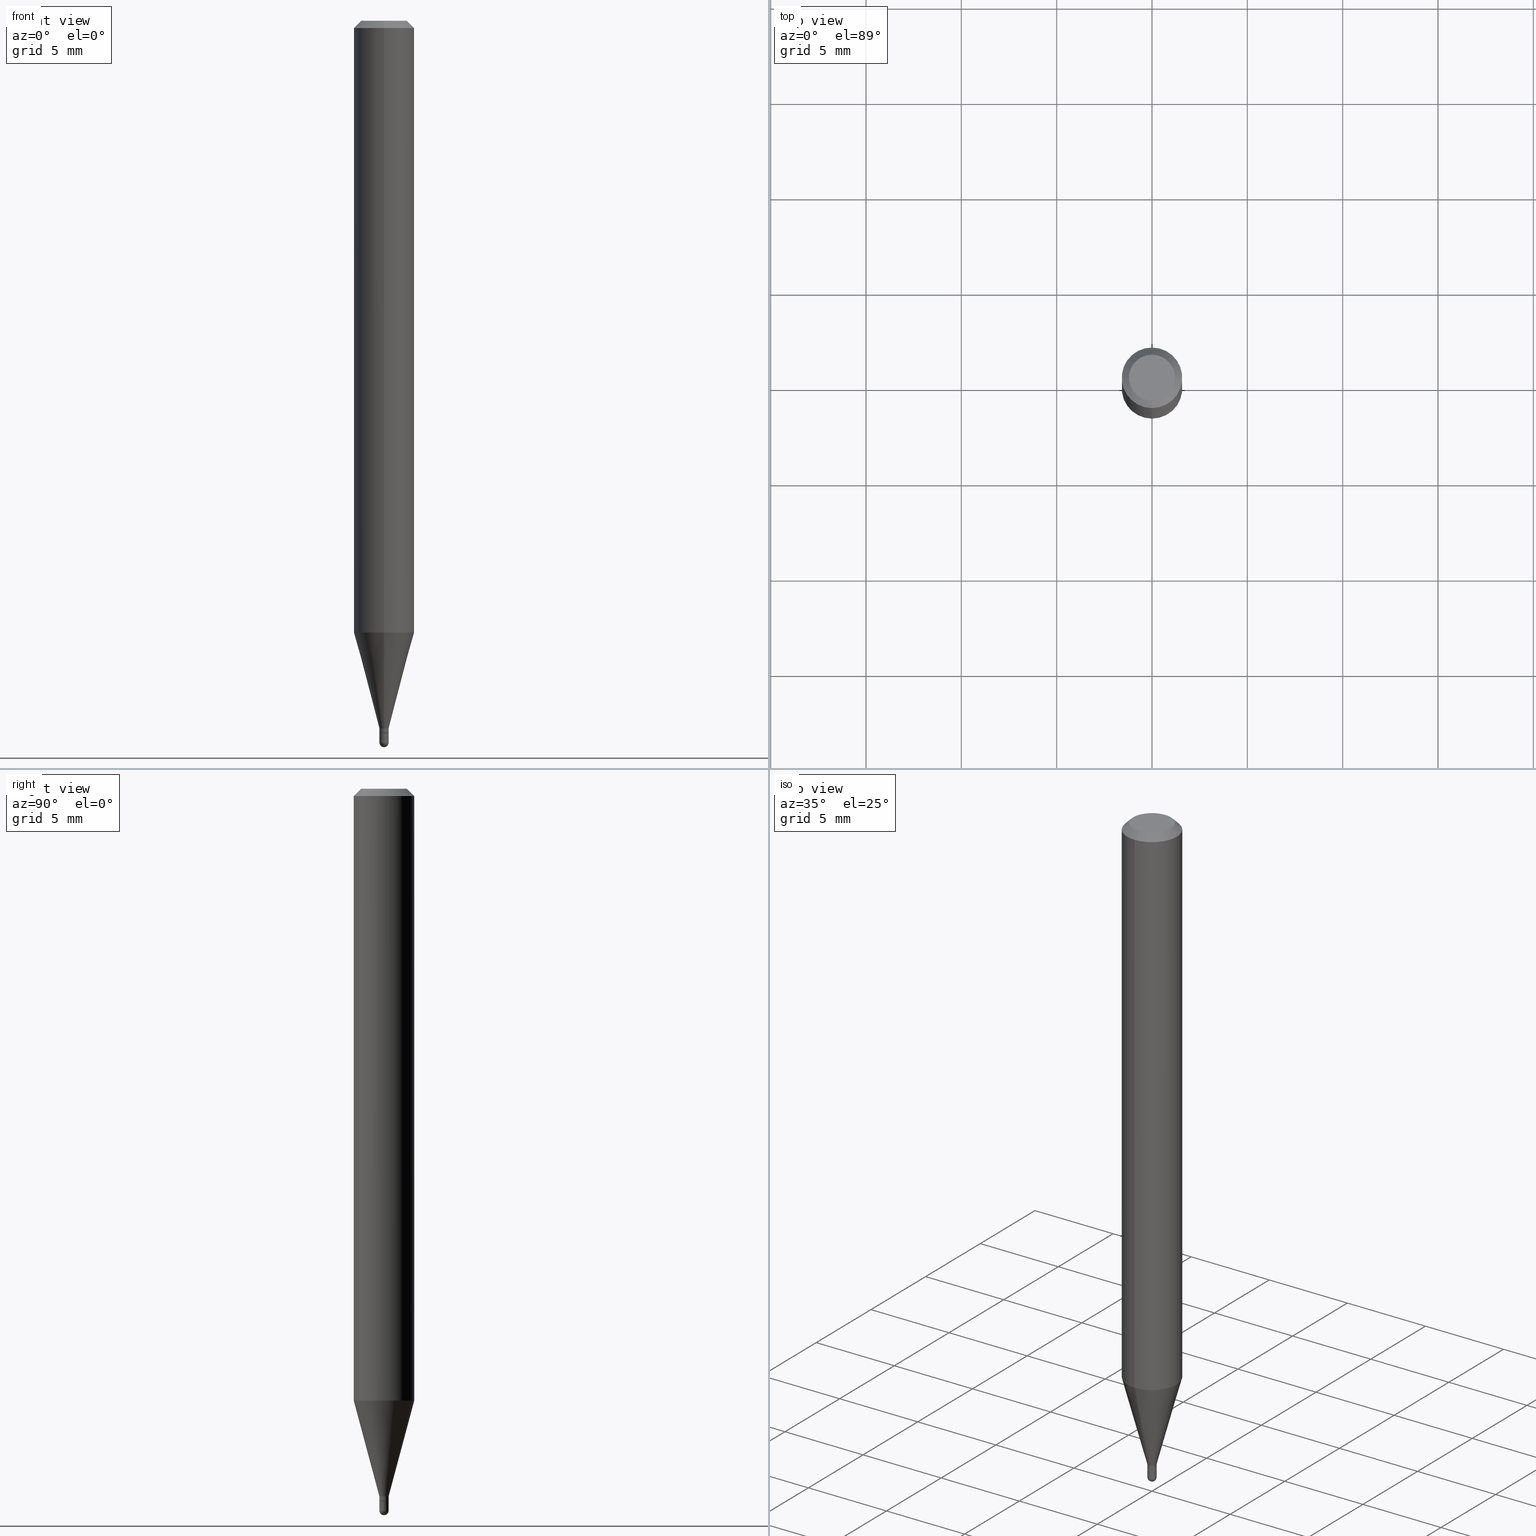
[diagram: canonical four-view strip — front | top / right | iso, engineering-drawing reading convention]
A machine part, canonical four-view strip (front | top / right | iso — engineering-drawing reading convention). The complete STEP part file that produces these views, byte-faithful:
ISO-10303-21;
HEADER;
FILE_DESCRIPTION (( 'STEP AP203' ),
    '1' );
FILE_NAME ('03080.STEP',
    '2024-03-08T18:07:23',
    ( '' ),
    ( '' ),
    'SwSTEP 2.0',
    'SolidWorks 2023',
    '' );
FILE_SCHEMA (( 'CONFIG_CONTROL_DESIGN' ));
ENDSEC;

DATA;
#1 = CARTESIAN_POINT ( 'NONE',  ( -6.633814543798517442E-17, -0.009500000000005297610, -1.461000000000000076 ) ) ;
#2 = AXIS2_PLACEMENT_3D ( 'NONE', #264, #398, #73 ) ;
#3 = VECTOR ( 'NONE', #189, 39.37007874015748143 ) ;
#4 = ORIENTED_EDGE ( 'NONE', *, *, #104, .F. ) ;
#5 = DIRECTION ( 'NONE',  ( 2.445482984812640302E-29, -3.491461034241563044E-15, -1.000000000000000000 ) ) ;
#6 = EDGE_LOOP ( 'NONE', ( #193, #278, #181, #230 ) ) ;
#7 = DIRECTION ( 'NONE',  ( -2.445482984812640302E-29, 3.491461034241563044E-15, 1.000000000000000000 ) ) ;
#8 = EDGE_LOOP ( 'NONE', ( #90, #362, #429, #195 ) ) ;
#9 = PERSON_AND_ORGANIZATION ( #420, #396 ) ;
#10 = AXIS2_PLACEMENT_3D ( 'NONE', #50, #340, #135 ) ;
#11 = VECTOR ( 'NONE', #265, 39.37007874015748143 ) ;
#12 = ADVANCED_FACE ( 'NONE', ( #68 ), #297, .T. ) ;
#13 = LINE ( 'NONE', #163, #473 ) ;
#14 = CARTESIAN_POINT ( 'NONE',  ( 6.633814543805549397E-17, 0.009499999999994863248, -1.471000000000000307 ) ) ;
#15 = APPROVAL_ROLE ( '' ) ;
#16 = ADVANCED_FACE ( 'NONE', ( #139 ), #418, .T. ) ;
#17 = DIRECTION ( 'NONE',  ( -6.982962677686265922E-15, -1.000000000000000000, 0.000000000000000000 ) ) ;
#18 = ORIENTED_EDGE ( 'NONE', *, *, #40, .T. ) ;
#19 = EDGE_LOOP ( 'NONE', ( #325, #86 ) ) ;
#20 = PRODUCT_DEFINITION ( 'UNKNOWN', '', #442, #43 ) ;
#21 = AXIS2_PLACEMENT_3D ( 'NONE', #413, #81, #44 ) ;
#22 = ORIENTED_EDGE ( 'NONE', *, *, #56, .T. ) ;
#23 = EDGE_CURVE ( 'NONE', #412, #390, #174, .T. ) ;
#24 = AXIS2_PLACEMENT_3D ( 'NONE', #31, #155, #34 ) ;
#25 = FACE_OUTER_BOUND ( 'NONE', #302, .T. ) ;
#26 = VERTEX_POINT ( 'NONE', #263 ) ;
#27 = ORIENTED_EDGE ( 'NONE', *, *, #358, .T. ) ;
#28 = DIRECTION ( 'NONE',  ( -6.982962677686265922E-15, -1.000000000000000000, 3.483106191921935554E-15 ) ) ;
#29 = ORIENTED_EDGE ( 'NONE', *, *, #150, .T. ) ;
#30 = CIRCLE ( 'NONE', #373, 0.009499999999999923436 ) ;
#31 = CARTESIAN_POINT ( 'NONE',  ( 3.644158847644226040E-29, -5.205216350004899290E-15, -1.490500000000000158 ) ) ;
#32 = CARTESIAN_POINT ( 'NONE',  ( 3.666984597315625009E-29, -5.238967129953503487E-15, -1.500000000000000222 ) ) ;
#33 = EDGE_LOOP ( 'NONE', ( #18, #149, #204, #272 ) ) ;
#34 = DIRECTION ( 'NONE',  ( 7.105427357601000281E-15, 1.000000000000000000, 0.000000000000000000 ) ) ;
#35 = CARTESIAN_POINT ( 'NONE',  ( 6.750155989724662942E-17, 0.009499999999995095701, -1.461000000000000076 ) ) ;
#36 = EDGE_LOOP ( 'NONE', ( #291, #359, #411, #202 ) ) ;
#37 = APPLICATION_CONTEXT ( 'configuration controlled 3d designs of mechanical parts and assemblies' ) ;
#38 = DIRECTION ( 'NONE',  ( -6.982962677686265922E-15, -1.000000000000000000, 4.370956789862821150E-15 ) ) ;
#39 = VERTEX_POINT ( 'NONE', #439 ) ;
#40 = EDGE_CURVE ( 'NONE', #456, #39, #215, .T. ) ;
#41 =( GEOMETRIC_REPRESENTATION_CONTEXT ( 3 ) GLOBAL_UNCERTAINTY_ASSIGNED_CONTEXT ( ( #196 ) ) GLOBAL_UNIT_ASSIGNED_CONTEXT ( ( #453, #511, #228 ) ) REPRESENTATION_CONTEXT ( 'NONE', 'WORKASPACE' ) );
#42 = ORIENTED_EDGE ( 'NONE', *, *, #190, .T. ) ;
#43 = DESIGN_CONTEXT ( 'detailed design', #37, 'design' ) ;
#44 = DIRECTION ( 'NONE',  ( -6.982962677686265922E-15, -1.000000000000000000, 0.000000000000000000 ) ) ;
#45 = ADVANCED_FACE ( 'NONE', ( #55 ), #129, .F. ) ;
#46 = EDGE_CURVE ( 'NONE', #274, #348, #153, .T. ) ;
#47 = COORDINATED_UNIVERSAL_TIME_OFFSET ( 5, 0, .BEHIND. ) ;
#48 = ORIENTED_EDGE ( 'NONE', *, *, #471, .F. ) ;
#49 = DATE_AND_TIME ( #91, #254 ) ;
#50 = CARTESIAN_POINT ( 'NONE',  ( 3.572850640811267668E-29, -5.101024571026923519E-15, -1.461000000000000076 ) ) ;
#51 = CALENDAR_DATE ( 2024, 8, 3 ) ;
#52 = CARTESIAN_POINT ( 'NONE',  ( 3.644971255618947272E-29, -5.204052935545710398E-15, -1.490500000000000380 ) ) ;
#53 = CONICAL_SURFACE ( 'NONE', #2, 0.008999999999999999320, 0.7853981633974739252 ) ;
#54 = APPROVAL_STATUS ( 'not_yet_approved' ) ;
#55 = FACE_OUTER_BOUND ( 'NONE', #267, .T. ) ;
#56 = EDGE_CURVE ( 'NONE', #274, #237, #166, .T. ) ;
#57 = DIRECTION ( 'NONE',  ( -2.445468806185136597E-29, 3.491481338843145583E-15, 1.000000000000000000 ) ) ;
#58 = DIRECTION ( 'NONE',  ( -6.982962677686265922E-15, -1.000000000000000000, 0.000000000000000000 ) ) ;
#59 = CIRCLE ( 'NONE', #304, 0.06250000000000000000 ) ;
#60 = ADVANCED_FACE ( 'NONE', ( #381 ), #416, .T. ) ;
#61 = CYLINDRICAL_SURFACE ( 'NONE', #338, 0.06250000000000000000 ) ;
#62 = CARTESIAN_POINT ( 'NONE',  ( 3.644158847644226040E-29, -5.205216350004899290E-15, -1.490500000000000158 ) ) ;
#63 = ADVANCED_FACE ( 'NONE', ( #372 ), #424, .T. ) ;
#64 = AXIS2_PLACEMENT_3D ( 'NONE', #106, #324, #273 ) ;
#65 = CIRCLE ( 'NONE', #504, 0.009500000000000001499 ) ;
#66 = DIRECTION ( 'NONE',  ( -2.445468806185136597E-29, 3.491481338843145583E-15, 1.000000000000000000 ) ) ;
#67 = CARTESIAN_POINT ( 'NONE',  ( 6.750155989724470657E-17, 0.009499999999994757430, -1.470500000000000362 ) ) ;
#68 = FACE_OUTER_BOUND ( 'NONE', #451, .T. ) ;
#69 = PRODUCT_RELATED_PRODUCT_CATEGORY ( 'detail', '', ( #122 ) ) ;
#70 = EDGE_CURVE ( 'NONE', #173, #156, #419, .T. ) ;
#71 = DIRECTION ( 'NONE',  ( -2.445482984812640021E-29, 3.491461034241563044E-15, 1.000000000000000000 ) ) ;
#72 = LINE ( 'NONE', #35, #11 ) ;
#73 = DIRECTION ( 'NONE',  ( -6.982962677686265133E-15, -1.000000000000000000, 0.000000000000000000 ) ) ;
#74 = CLOSED_SHELL ( 'NONE', ( #446, #259, #84, #99, #199, #16, #336, #503, #403, #207, #286, #363 ) ) ;
#75 = CARTESIAN_POINT ( 'NONE',  ( 3.597305470659394598E-29, -5.135939181369340002E-15, -1.471000000000000307 ) ) ;
#76 = CIRCLE ( 'NONE', #483, 0.04749999999999999362 ) ;
#77 = CIRCLE ( 'NONE', #198, 0.06250000000000000000 ) ;
#78 = DIRECTION ( 'NONE',  ( -6.982962677686265133E-15, -1.000000000000000000, 0.000000000000000000 ) ) ;
#79 = CARTESIAN_POINT ( 'NONE',  ( 4.364351673553919652E-16, 0.06249999999999995143, -0.01499999999999997863 ) ) ;
#80 = ORIENTED_EDGE ( 'NONE', *, *, #294, .F. ) ;
#81 = DIRECTION ( 'NONE',  ( -2.445482984812640302E-29, 3.491461034241563044E-15, 1.000000000000000000 ) ) ;
#82 = LINE ( 'NONE', #478, #440 ) ;
#83 = CYLINDRICAL_SURFACE ( 'NONE', #320, 0.009500000000000060479 ) ;
#84 = ADVANCED_FACE ( 'NONE', ( #101 ), #175, .T. ) ;
#85 = DIRECTION ( 'NONE',  ( -2.445482984812640302E-29, 3.491461034241563044E-15, 1.000000000000000000 ) ) ;
#86 = ORIENTED_EDGE ( 'NONE', *, *, #170, .F. ) ;
#87 = ORIENTED_EDGE ( 'NONE', *, *, #46, .F. ) ;
#88 = CIRCLE ( 'NONE', #495, 0.009500000000000195788 ) ;
#89 = CARTESIAN_POINT ( 'NONE',  ( 0.000000000000000000, 0.000000000000000000, 0.000000000000000000 ) ) ;
#90 = ORIENTED_EDGE ( 'NONE', *, *, #275, .F. ) ;
#91 = CALENDAR_DATE ( 2024, 8, 3 ) ;
#92 = EDGE_CURVE ( 'NONE', #466, #235, #13, .T. ) ;
#93 = CALENDAR_DATE ( 2024, 8, 3 ) ;
#94 = AXIS2_PLACEMENT_3D ( 'NONE', #75, #282, #461 ) ;
#95 = CARTESIAN_POINT ( 'NONE',  ( -5.856630421576116268E-45, 8.361618966837089108E-31, 2.394876782193117197E-16 ) ) ;
#96 = APPROVAL_STATUS ( 'not_yet_approved' ) ;
#97 = CC_DESIGN_DATE_AND_TIME_ASSIGNMENT ( #49, #382, ( #126 ) ) ;
#98 = APPROVAL ( #54, 'UNSPECIFIED' ) ;
#99 = ADVANCED_FACE ( 'NONE', ( #494 ), #281, .T. ) ;
#100 = ADVANCED_BREP_SHAPE_REPRESENTATION ( '03080', ( #110, #283, #375 ), #41 ) ;
#101 = FACE_OUTER_BOUND ( 'NONE', #121, .T. ) ;
#102 = CARTESIAN_POINT ( 'NONE',  ( 0.000000000000000000, 0.000000000000000000, 0.000000000000000000 ) ) ;
#103 = AXIS2_PLACEMENT_3D ( 'NONE', #62, #498, #58 ) ;
#104 = EDGE_CURVE ( 'NONE', #444, #274, #184, .T. ) ;
#105 = ORIENTED_EDGE ( 'NONE', *, *, #227, .T. ) ;
#106 = CARTESIAN_POINT ( 'NONE',  ( 3.644158847644226040E-29, -5.205216350004899290E-15, -1.490500000000000158 ) ) ;
#107 = DIRECTION ( 'NONE',  ( -2.445482984812640302E-29, 3.491461034241563044E-15, 1.000000000000000000 ) ) ;
#108 = CARTESIAN_POINT ( 'NONE',  ( -4.287811248607203282E-16, -0.06250000000000005551, -0.01499999999999954321 ) ) ;
#109 = CARTESIAN_POINT ( 'NONE',  ( 3.840629472727447874E-16, 0.04749999999999999362, 7.364327909283752044E-17 ) ) ;
#110 = MANIFOLD_SOLID_BREP ( 'Body-Move/Copy2[1]', #295 ) ;
#111 = CARTESIAN_POINT ( 'NONE',  ( 3.597305470659394598E-29, -5.135939181369340002E-15, -1.471000000000000307 ) ) ;
#112 = ORIENTED_EDGE ( 'NONE', *, *, #92, .T. ) ;
#113 = VECTOR ( 'NONE', #133, 39.37007874015748143 ) ;
#114 = AXIS2_PLACEMENT_3D ( 'NONE', #171, #221, #299 ) ;
#115 = DIRECTION ( 'NONE',  ( 6.982962677686265922E-15, 1.000000000000000000, -3.483106191921935554E-15 ) ) ;
#116 = DIRECTION ( 'NONE',  ( -2.445482984812640302E-29, 3.491461034241563044E-15, 1.000000000000000000 ) ) ;
#117 = EDGE_LOOP ( 'NONE', ( #262, #486, #243, #393 ) ) ;
#118 = DIRECTION ( 'NONE',  ( -6.982962677686265133E-15, -1.000000000000000000, 0.000000000000000000 ) ) ;
#119 = EDGE_CURVE ( 'NONE', #479, #177, #76, .T. ) ;
#120 = CARTESIAN_POINT ( 'NONE',  ( -6.633814543798517442E-17, -0.009500000000005297610, -1.461000000000000076 ) ) ;
#121 = EDGE_LOOP ( 'NONE', ( #490, #493, #185, #48 ) ) ;
#122 = PRODUCT ( '03080', '03080', '', ( #206 ) ) ;
#123 = ORIENTED_EDGE ( 'NONE', *, *, #358, .F. ) ;
#124 = PERSON_AND_ORGANIZATION ( #420, #396 ) ;
#125 = AXIS2_PLACEMENT_3D ( 'NONE', #208, #374, #130 ) ;
#126 = SECURITY_CLASSIFICATION ( '', '', #244 ) ;
#127 = DIRECTION ( 'NONE',  ( 0.000000000000000000, 0.000000000000000000, 1.000000000000000000 ) ) ;
#128 = VERTEX_POINT ( 'NONE', #505 ) ;
#129 = PLANE ( 'NONE',  #394 ) ;
#130 = DIRECTION ( 'NONE',  ( 6.982962677686265922E-15, 1.000000000000000000, -3.483106191921935554E-15 ) ) ;
#131 = PERSON_AND_ORGANIZATION_ROLE ( 'design_owner' ) ;
#132 = VECTOR ( 'NONE', #232, 39.37007874015748143 ) ;
#133 = DIRECTION ( 'NONE',  ( -2.445468806185136877E-29, 3.491481338843145188E-15, 1.000000000000000000 ) ) ;
#134 = DATE_AND_TIME ( #497, #248 ) ;
#135 = DIRECTION ( 'NONE',  ( -6.982962677686265922E-15, -1.000000000000000000, 0.000000000000000000 ) ) ;
#136 = CARTESIAN_POINT ( 'NONE',  ( 3.668224477218901983E-31, -5.237191551362261588E-17, -0.01499999999999976179 ) ) ;
#137 = VECTOR ( 'NONE', #107, 39.37007874015748143 ) ;
#138 = LOCAL_TIME ( 13, 7, 23.00000000000000000, #47 ) ;
#139 = FACE_OUTER_BOUND ( 'NONE', #400, .T. ) ;
#140 = CARTESIAN_POINT ( 'NONE',  ( 3.316907271900976096E-16, 0.04749999999999999362, -4.610056001681835172E-17 ) ) ;
#141 = DIRECTION ( 'NONE',  ( -2.445482984812640302E-29, 3.491461034241563044E-15, 1.000000000000000000 ) ) ;
#142 = DIRECTION ( 'NONE',  ( -2.445482984812640302E-29, 3.491461034241563044E-15, 1.000000000000000000 ) ) ;
#143 = AXIS2_PLACEMENT_3D ( 'NONE', #450, #5, #115 ) ;
#144 = DIRECTION ( 'NONE',  ( -2.445482984812640302E-29, 3.491461034241563044E-15, 1.000000000000000000 ) ) ;
#145 = CARTESIAN_POINT ( 'NONE',  ( 0.000000000000000000, 0.000000000000000000, 0.000000000000000000 ) ) ;
#146 = FACE_OUTER_BOUND ( 'NONE', #293, .T. ) ;
#147 = ORIENTED_EDGE ( 'NONE', *, *, #414, .F. ) ;
#148 = CARTESIAN_POINT ( 'NONE',  ( 3.597305470659394598E-29, -5.135939181369340002E-15, -1.471000000000000307 ) ) ;
#149 = ORIENTED_EDGE ( 'NONE', *, *, #294, .T. ) ;
#150 = EDGE_CURVE ( 'NONE', #237, #319, #247, .T. ) ;
#151 = DIRECTION ( 'NONE',  ( -6.982962677686266711E-15, -1.000000000000000000, 3.491461034241562650E-15 ) ) ;
#152 = EDGE_LOOP ( 'NONE', ( #431, #508, #407, #105, #172 ) ) ;
#153 = CIRCLE ( 'NONE', #459, 0.009500000000000001499 ) ;
#154 = CIRCLE ( 'NONE', #491, 0.008999999999999999320 ) ;
#155 = DIRECTION ( 'NONE',  ( 1.000000000000000000, -7.105427357601001070E-15, 4.926315508542082329E-29 ) ) ;
#156 = VERTEX_POINT ( 'NONE', #1 ) ;
#157 = CARTESIAN_POINT ( 'NONE',  ( 3.089137303147875048E-29, -4.410418142487795065E-15, -1.263201307198851042 ) ) ;
#158 = ORIENTED_EDGE ( 'NONE', *, *, #335, .T. ) ;
#159 = ORIENTED_EDGE ( 'NONE', *, *, #70, .T. ) ;
#160 = CIRCLE ( 'NONE', #229, 0.009500000000000001499 ) ;
#161 = PERSON_AND_ORGANIZATION_ROLE ( 'creator' ) ;
#162 = APPROVAL ( #96, 'UNSPECIFIED' ) ;
#163 = CARTESIAN_POINT ( 'NONE',  ( 4.440892098500625669E-16, 0.06250000000000000000, -2.182163146400976903E-16 ) ) ;
#164 = DATE_AND_TIME ( #51, #404 ) ;
#165 = CC_DESIGN_PERSON_AND_ORGANIZATION_ASSIGNMENT ( #356, #481, ( #126 ) ) ;
#166 = LINE ( 'NONE', #496, #113 ) ;
#167 = EDGE_CURVE ( 'NONE', #449, #235, #474, .T. ) ;
#168 = CC_DESIGN_APPROVAL ( #98, ( #126 ) ) ;
#169 = DIRECTION ( 'NONE',  ( -2.445468806185136597E-29, 3.491481338843145583E-15, 1.000000000000000000 ) ) ;
#170 = EDGE_CURVE ( 'NONE', #39, #456, #154, .T. ) ;
#171 = CARTESIAN_POINT ( 'NONE',  ( 0.000000000000000000, 0.000000000000000000, 0.000000000000000000 ) ) ;
#172 = ORIENTED_EDGE ( 'NONE', *, *, #150, .F. ) ;
#173 = VERTEX_POINT ( 'NONE', #433 ) ;
#174 = CIRCLE ( 'NONE', #284, 0.009499999999999923436 ) ;
#175 = CONICAL_SURFACE ( 'NONE', #125, 0.06250000000000000000, 0.7853981633974483900 ) ;
#176 = CC_DESIGN_APPROVAL ( #388, ( #442 ) ) ;
#177 = VERTEX_POINT ( 'NONE', #109 ) ;
#178 = DIRECTION ( 'NONE',  ( -6.982962677686265922E-15, -1.000000000000000000, 0.000000000000000000 ) ) ;
#179 = EDGE_LOOP ( 'NONE', ( #415, #22, #123, #367, #219 ) ) ;
#180 = CARTESIAN_POINT ( 'NONE',  ( 6.394884621844497902E-17, 0.008999999999994862804, -1.471000000000000307 ) ) ;
#181 = ORIENTED_EDGE ( 'NONE', *, *, #298, .T. ) ;
#182 = DIRECTION ( 'NONE',  ( 1.000000000000000000, -6.982962677686281699E-15, 0.000000000000000000 ) ) ;
#183 = APPLICATION_PROTOCOL_DEFINITION ( 'international standard', 'config_control_design', 1994, #234 ) ;
#184 = CIRCLE ( 'NONE', #216, 0.009500000000000001499 ) ;
#185 = ORIENTED_EDGE ( 'NONE', *, *, #167, .T. ) ;
#186 = CIRCLE ( 'NONE', #387, 0.06250000000000000000 ) ;
#187 = DIRECTION ( 'NONE',  ( -2.445482984812640302E-29, 3.491461034241563044E-15, 1.000000000000000000 ) ) ;
#188 = COORDINATED_UNIVERSAL_TIME_OFFSET ( 5, 0, .BEHIND. ) ;
#189 = DIRECTION ( 'NONE',  ( -1.807323732225330928E-15, -0.2588190451025182970, 0.9659258262890689783 ) ) ;
#190 = EDGE_CURVE ( 'NONE', #390, #156, #225, .T. ) ;
#191 = EDGE_LOOP ( 'NONE', ( #310, #112, #489, #218 ) ) ;
#192 = LENGTH_MEASURE_WITH_UNIT ( LENGTH_MEASURE( 0.02539999999999999897 ), #357 );
#193 = ORIENTED_EDGE ( 'NONE', *, *, #92, .F. ) ;
#194 = EDGE_CURVE ( 'NONE', #364, #444, #266, .T. ) ;
#195 = ORIENTED_EDGE ( 'NONE', *, *, #331, .T. ) ;
#196 = UNCERTAINTY_MEASURE_WITH_UNIT (LENGTH_MEASURE( 1.000000000000000082E-05 ), #453, 'distance_accuracy_value', 'NONE');
#197 = CONICAL_SURFACE ( 'NONE', #276, 0.008999999999999999320, 0.7853981633974739252 ) ;
#198 = AXIS2_PLACEMENT_3D ( 'NONE', #350, #142, #476 ) ;
#199 = ADVANCED_FACE ( 'NONE', ( #482 ), #395, .T. ) ;
#200 = LINE ( 'NONE', #326, #285 ) ;
#201 = LINE ( 'NONE', #79, #499 ) ;
#202 = ORIENTED_EDGE ( 'NONE', *, *, #190, .F. ) ;
#203 = DATE_AND_TIME ( #384, #138 ) ;
#204 = ORIENTED_EDGE ( 'NONE', *, *, #257, .F. ) ;
#205 = DIRECTION ( 'NONE',  ( -6.982962677686265922E-15, -1.000000000000000000, 3.491461034241563044E-15 ) ) ;
#206 = MECHANICAL_CONTEXT ( 'NONE', #234, 'mechanical' ) ;
#207 = ADVANCED_FACE ( 'NONE', ( #349 ), #509, .F. ) ;
#208 = CARTESIAN_POINT ( 'NONE',  ( 3.668224477218901983E-31, -5.237191551362261588E-17, -0.01499999999999976179 ) ) ;
#209 = APPROVAL_PERSON_ORGANIZATION ( #250, #98, #252 ) ;
#210 = APPROVAL_DATE_TIME ( #134, #98 ) ;
#211 = APPLICATION_PROTOCOL_DEFINITION ( 'international standard', 'config_control_design', 1994, #37 ) ;
#212 = DIRECTION ( 'NONE',  ( -1.000000000000000000, 6.982962677686265922E-15, -4.876176775795935793E-29 ) ) ;
#213 = CARTESIAN_POINT ( 'NONE',  ( 0.009499999999999999764, -5.202307194876288105E-15, -1.471000000000000307 ) ) ;
#214 = CARTESIAN_POINT ( 'NONE',  ( 0.000000000000000000, 0.000000000000000000, 0.000000000000000000 ) ) ;
#215 = CIRCLE ( 'NONE', #94, 0.008999999999999999320 ) ;
#216 = AXIS2_PLACEMENT_3D ( 'NONE', #52, #376, #423 ) ;
#217 = DIRECTION ( 'NONE',  ( -2.445482984812640302E-29, 3.491461034241563044E-15, 1.000000000000000000 ) ) ;
#218 = ORIENTED_EDGE ( 'NONE', *, *, #298, .F. ) ;
#219 = ORIENTED_EDGE ( 'NONE', *, *, #251, .T. ) ;
#220 = DIRECTION ( 'NONE',  ( -2.445482984812640302E-29, 3.491461034241563044E-15, 1.000000000000000000 ) ) ;
#221 = DIRECTION ( 'NONE',  ( -2.445468806185136597E-29, 3.491481338843145583E-15, 1.000000000000000000 ) ) ;
#222 = AXIS2_PLACEMENT_3D ( 'NONE', #268, #475, #182 ) ;
#223 = LINE ( 'NONE', #180, #332 ) ;
#224 = DIRECTION ( 'NONE',  ( 2.445482984812640021E-29, -3.491461034241563044E-15, -1.000000000000000000 ) ) ;
#225 = LINE ( 'NONE', #355, #239 ) ;
#226 = PERSON_AND_ORGANIZATION ( #420, #396 ) ;
#227 = EDGE_CURVE ( 'NONE', #128, #319, #82, .T. ) ;
#228 =( NAMED_UNIT ( * ) SI_UNIT ( $, .STERADIAN. ) SOLID_ANGLE_UNIT ( ) );
#229 = AXIS2_PLACEMENT_3D ( 'NONE', #269, #448, #313 ) ;
#230 = ORIENTED_EDGE ( 'NONE', *, *, #331, .F. ) ;
#231 = VECTOR ( 'NONE', #409, 39.37007874015748143 ) ;
#232 = DIRECTION ( 'NONE',  ( -4.851104656540964275E-15, -0.7071067811865500152, -0.7071067811865450192 ) ) ;
#233 = APPROVAL_DATE_TIME ( #164, #388 ) ;
#234 = APPLICATION_CONTEXT ( 'configuration controlled 3d designs of mechanical parts and assemblies' ) ;
#235 = VERTEX_POINT ( 'NONE', #312 ) ;
#236 = FACE_OUTER_BOUND ( 'NONE', #179, .T. ) ;
#237 = VERTEX_POINT ( 'NONE', #303 ) ;
#238 = ORIENTED_EDGE ( 'NONE', *, *, #464, .T. ) ;
#239 = VECTOR ( 'NONE', #408, 39.37007874015748143 ) ;
#240 = AXIS2_PLACEMENT_3D ( 'NONE', #214, #169, #287 ) ;
#241 = APPROVAL_PERSON_ORGANIZATION ( #249, #388, #15 ) ;
#242 = ORIENTED_EDGE ( 'NONE', *, *, #452, .T. ) ;
#243 = ORIENTED_EDGE ( 'NONE', *, *, #251, .F. ) ;
#244 = SECURITY_CLASSIFICATION_LEVEL ( 'unclassified' ) ;
#245 = APPROVAL_ROLE ( '' ) ;
#246 = CARTESIAN_POINT ( 'NONE',  ( 3.644971255618947272E-29, -5.204052935545710398E-15, -1.490500000000000380 ) ) ;
#247 = CIRCLE ( 'NONE', #222, 0.009499999999999999764 ) ;
#248 = LOCAL_TIME ( 13, 7, 23.00000000000000000, #389 ) ;
#249 = PERSON_AND_ORGANIZATION ( #420, #396 ) ;
#250 = PERSON_AND_ORGANIZATION ( #420, #396 ) ;
#251 = EDGE_CURVE ( 'NONE', #128, #444, #65, .T. ) ;
#252 = APPROVAL_ROLE ( '' ) ;
#253 = AXIS2_PLACEMENT_3D ( 'NONE', #397, #144, #502 ) ;
#254 = LOCAL_TIME ( 13, 7, 23.00000000000000000, #277 ) ;
#255 = CC_DESIGN_PERSON_AND_ORGANIZATION_ASSIGNMENT ( #226, #308, ( #442 ) ) ;
#256 = CARTESIAN_POINT ( 'NONE',  ( -6.633814543798259830E-17, -0.009500000000005136280, -1.490500000000000380 ) ) ;
#257 = EDGE_CURVE ( 'NONE', #390, #412, #30, .T. ) ;
#258 = DIRECTION ( 'NONE',  ( -2.445482984812640302E-29, 3.491461034241563044E-15, 1.000000000000000000 ) ) ;
#259 = ADVANCED_FACE ( 'NONE', ( #437 ), #53, .T. ) ;
#260 = CARTESIAN_POINT ( 'NONE',  ( 3.644971255618947272E-29, -5.204052935545710398E-15, -1.490500000000000380 ) ) ;
#261 = DIRECTION ( 'NONE',  ( -2.445482984812640302E-29, 3.491461034241563044E-15, 1.000000000000000000 ) ) ;
#262 = ORIENTED_EDGE ( 'NONE', *, *, #306, .F. ) ;
#263 = CARTESIAN_POINT ( 'NONE',  ( -4.364351673553607559E-16, -0.06250000000000441314, -1.263201307198850820 ) ) ;
#264 = CARTESIAN_POINT ( 'NONE',  ( 3.597305470659394598E-29, -5.135939181369340002E-15, -1.471000000000000307 ) ) ;
#265 = DIRECTION ( 'NONE',  ( 1.839019923739601104E-15, 0.2588190451025250693, 0.9659258262890670910 ) ) ;
#266 = CIRCLE ( 'NONE', #24, 0.009499999999999862721 ) ;
#267 = EDGE_LOOP ( 'NONE', ( #27, #29 ) ) ;
#268 = CARTESIAN_POINT ( 'NONE',  ( 3.597284613898336423E-29, -5.135969049438267814E-15, -1.471000000000000307 ) ) ;
#269 = CARTESIAN_POINT ( 'NONE',  ( 3.644971255618947272E-29, -5.204052935545710398E-15, -1.490500000000000380 ) ) ;
#270 = EDGE_LOOP ( 'NONE', ( #158, #512, #147, #354 ) ) ;
#271 = CARTESIAN_POINT ( 'NONE',  ( 4.440892098500932831E-16, 0.06249999999999557992, -1.263201307198851264 ) ) ;
#272 = ORIENTED_EDGE ( 'NONE', *, *, #464, .F. ) ;
#273 = DIRECTION ( 'NONE',  ( -6.982962677686265922E-15, -1.000000000000000000, 0.000000000000000000 ) ) ;
#274 = VERTEX_POINT ( 'NONE', #401 ) ;
#275 = EDGE_CURVE ( 'NONE', #479, #449, #315, .T. ) ;
#276 = AXIS2_PLACEMENT_3D ( 'NONE', #487, #187, #118 ) ;
#277 = COORDINATED_UNIVERSAL_TIME_OFFSET ( 5, 0, .BEHIND. ) ;
#278 = ORIENTED_EDGE ( 'NONE', *, *, #370, .T. ) ;
#279 = ORIENTED_EDGE ( 'NONE', *, *, #119, .T. ) ;
#280 = COORDINATED_UNIVERSAL_TIME_OFFSET ( 5, 0, .BEHIND. ) ;
#281 = CYLINDRICAL_SURFACE ( 'NONE', #426, 0.06250000000000000000 ) ;
#282 = DIRECTION ( 'NONE',  ( -2.445482984812640302E-29, 3.491461034241563044E-15, 1.000000000000000000 ) ) ;
#283 = MANIFOLD_SOLID_BREP ( 'Body-Move/Copy2[2]', #74 ) ;
#284 = AXIS2_PLACEMENT_3D ( 'NONE', #368, #7, #311 ) ;
#285 = VECTOR ( 'NONE', #425, 39.37007874015748143 ) ;
#286 = ADVANCED_FACE ( 'NONE', ( #25 ), #197, .T. ) ;
#287 = DIRECTION ( 'NONE',  ( 1.000000000000000000, -6.982962677686265922E-15, 4.876176775795935793E-29 ) ) ;
#288 = SHAPE_DEFINITION_REPRESENTATION ( #378, #100 ) ;
#289 = DIRECTION ( 'NONE',  ( 1.000000000000000000, 0.000000000000000000, 0.000000000000000000 ) ) ;
#290 = DIRECTION ( 'NONE',  ( 1.000000000000000000, -6.982962677686280121E-15, 0.000000000000000000 ) ) ;
#291 = ORIENTED_EDGE ( 'NONE', *, *, #257, .T. ) ;
#292 = CC_DESIGN_PERSON_AND_ORGANIZATION_ASSIGNMENT ( #458, #131, ( #122 ) ) ;
#293 = EDGE_LOOP ( 'NONE', ( #314, #371, #42, #351 ) ) ;
#294 = EDGE_CURVE ( 'NONE', #39, #412, #223, .T. ) ;
#295 = CLOSED_SHELL ( 'NONE', ( #383, #63, #45, #12, #60 ) ) ;
#296 = LOCAL_TIME ( 13, 7, 23.00000000000000000, #280 ) ;
#297 = SPHERICAL_SURFACE ( 'NONE', #64, 0.009499999999999862721 ) ;
#298 = EDGE_CURVE ( 'NONE', #26, #449, #200, .T. ) ;
#299 = DIRECTION ( 'NONE',  ( 1.000000000000000000, -6.982962677686265922E-15, 4.876176775795935793E-29 ) ) ;
#300 = LINE ( 'NONE', #468, #137 ) ;
#301 = CARTESIAN_POINT ( 'NONE',  ( -5.856630421576116268E-45, 8.361618966837089108E-31, 2.394876782193117197E-16 ) ) ;
#302 = EDGE_LOOP ( 'NONE', ( #80, #323, #238, #342 ) ) ;
#303 = CARTESIAN_POINT ( 'NONE',  ( -0.009499999999999999764, -5.102509432594779134E-15, -1.471000000000000307 ) ) ;
#304 = AXIS2_PLACEMENT_3D ( 'NONE', #136, #220, #465 ) ;
#305 = CARTESIAN_POINT ( 'NONE',  ( -6.633814543798326390E-17, -0.009500000000005089443, -1.470500000000000362 ) ) ;
#306 = EDGE_CURVE ( 'NONE', #364, #348, #432, .T. ) ;
#307 = DIRECTION ( 'NONE',  ( -6.982962677686265922E-15, -1.000000000000000000, 3.491461034241563044E-15 ) ) ;
#308 = PERSON_AND_ORGANIZATION_ROLE ( 'design_supplier' ) ;
#309 = CARTESIAN_POINT ( 'NONE',  ( -6.284666409914041700E-17, -0.009000000000005135836, -1.471000000000000307 ) ) ;
#310 = ORIENTED_EDGE ( 'NONE', *, *, #414, .T. ) ;
#311 = DIRECTION ( 'NONE',  ( -6.982962677686266711E-15, -1.000000000000000000, 0.000000000000000000 ) ) ;
#312 = CARTESIAN_POINT ( 'NONE',  ( 4.440892098500935790E-16, 0.06249999999999993755, -0.01499999999999997863 ) ) ;
#313 = DIRECTION ( 'NONE',  ( 1.000000000000000000, -6.982962677686280121E-15, 0.000000000000000000 ) ) ;
#314 = ORIENTED_EDGE ( 'NONE', *, *, #344, .F. ) ;
#315 = LINE ( 'NONE', #108, #132 ) ;
#316 = CARTESIAN_POINT ( 'NONE',  ( 0.000000000000000000, 0.000000000000000000, 0.000000000000000000 ) ) ;
#317 = AXIS2_PLACEMENT_3D ( 'NONE', #405, #480, #28 ) ;
#318 = DIRECTION ( 'NONE',  ( -6.982962677686265922E-15, -1.000000000000000000, 3.491461034241562650E-15 ) ) ;
#319 = VERTEX_POINT ( 'NONE', #213 ) ;
#320 = AXIS2_PLACEMENT_3D ( 'NONE', #316, #353, #441 ) ;
#321 = DIRECTION ( 'NONE',  ( -2.445468806185136877E-29, 3.491481338843145188E-15, 1.000000000000000000 ) ) ;
#322 = FACE_OUTER_BOUND ( 'NONE', #36, .T. ) ;
#323 = ORIENTED_EDGE ( 'NONE', *, *, #170, .T. ) ;
#324 = DIRECTION ( 'NONE',  ( 1.000000000000000000, -6.982962677686265922E-15, 4.883557194083112901E-29 ) ) ;
#325 = ORIENTED_EDGE ( 'NONE', *, *, #40, .F. ) ;
#326 = CARTESIAN_POINT ( 'NONE',  ( -4.364351673553916201E-16, -0.06250000000000000000, 2.182163146400976903E-16 ) ) ;
#327 = CC_DESIGN_PERSON_AND_ORGANIZATION_ASSIGNMENT ( #329, #161, ( #20 ) ) ;
#328 = ORIENTED_EDGE ( 'NONE', *, *, #194, .F. ) ;
#329 = PERSON_AND_ORGANIZATION ( #420, #396 ) ;
#330 = ORIENTED_EDGE ( 'NONE', *, *, #306, .T. ) ;
#331 = EDGE_CURVE ( 'NONE', #235, #449, #59, .T. ) ;
#332 = VECTOR ( 'NONE', #436, 39.37007874015748143 ) ;
#333 = APPROVAL_PERSON_ORGANIZATION ( #9, #162, #245 ) ;
#334 = DIRECTION ( 'NONE',  ( -2.445482984812640302E-29, 3.491461034241563044E-15, 1.000000000000000000 ) ) ;
#335 = EDGE_CURVE ( 'NONE', #156, #173, #88, .T. ) ;
#336 = ADVANCED_FACE ( 'NONE', ( #392 ), #61, .T. ) ;
#337 = DIRECTION ( 'NONE',  ( 2.438088387897960049E-29, -3.491481338843145188E-15, -1.000000000000000000 ) ) ;
#338 = AXIS2_PLACEMENT_3D ( 'NONE', #102, #347, #500 ) ;
#339 = AXIS2_PLACEMENT_3D ( 'NONE', #140, #224, #434 ) ;
#340 = DIRECTION ( 'NONE',  ( -2.445482984812640302E-29, 3.491461034241563044E-15, 1.000000000000000000 ) ) ;
#341 = CARTESIAN_POINT ( 'NONE',  ( 3.572850640811267668E-29, -5.101024571026923519E-15, -1.461000000000000076 ) ) ;
#342 = ORIENTED_EDGE ( 'NONE', *, *, #23, .F. ) ;
#343 = DIRECTION ( 'NONE',  ( 1.000000000000000000, -6.982962677686281699E-15, 0.000000000000000000 ) ) ;
#344 = EDGE_CURVE ( 'NONE', #412, #173, #300, .T. ) ;
#345 = AXIS2_PLACEMENT_3D ( 'NONE', #470, #57, #343 ) ;
#346 = CIRCLE ( 'NONE', #485, 0.04749999999999999362 ) ;
#347 = DIRECTION ( 'NONE',  ( -2.445482984812640302E-29, 3.491461034241563044E-15, 1.000000000000000000 ) ) ;
#348 = VERTEX_POINT ( 'NONE', #256 ) ;
#349 = FACE_OUTER_BOUND ( 'NONE', #19, .T. ) ;
#350 = CARTESIAN_POINT ( 'NONE',  ( 3.089137303147875048E-29, -4.410418142487795065E-15, -1.263201307198851042 ) ) ;
#351 = ORIENTED_EDGE ( 'NONE', *, *, #70, .F. ) ;
#352 = DIRECTION ( 'NONE',  ( -2.445482984812640302E-29, 3.491461034241563044E-15, 1.000000000000000000 ) ) ;
#353 = DIRECTION ( 'NONE',  ( -2.445482984812640302E-29, 3.491461034241563044E-15, 1.000000000000000000 ) ) ;
#354 = ORIENTED_EDGE ( 'NONE', *, *, #452, .F. ) ;
#355 = CARTESIAN_POINT ( 'NONE',  ( -6.633814543801994593E-17, -0.009500000000000060479, 3.316887982529505802E-17 ) ) ;
#356 = PERSON_AND_ORGANIZATION ( #420, #396 ) ;
#357 =( LENGTH_UNIT ( ) NAMED_UNIT ( * ) SI_UNIT ( $, .METRE. ) );
#358 = EDGE_CURVE ( 'NONE', #319, #237, #386, .T. ) ;
#359 = ORIENTED_EDGE ( 'NONE', *, *, #344, .T. ) ;
#360 = CARTESIAN_POINT ( 'NONE',  ( 3.596082729166988812E-29, -5.134193450852219927E-15, -1.470500000000000362 ) ) ;
#361 = CYLINDRICAL_SURFACE ( 'NONE', #463, 0.009500000000000060479 ) ;
#362 = ORIENTED_EDGE ( 'NONE', *, *, #406, .F. ) ;
#363 = ADVANCED_FACE ( 'NONE', ( #146 ), #361, .T. ) ;
#364 = VERTEX_POINT ( 'NONE', #32 ) ;
#365 = EDGE_CURVE ( 'NONE', #348, #128, #160, .T. ) ;
#366 = DIRECTION ( 'NONE',  ( 4.937700262164548042E-15, 0.7071067811865451302, -0.7071067811865499042 ) ) ;
#367 = ORIENTED_EDGE ( 'NONE', *, *, #227, .F. ) ;
#368 = CARTESIAN_POINT ( 'NONE',  ( 3.596082729166988812E-29, -5.134193450852219927E-15, -1.470500000000000362 ) ) ;
#369 = APPROVAL_DATE_TIME ( #203, #162 ) ;
#370 = EDGE_CURVE ( 'NONE', #466, #26, #186, .T. ) ;
#371 = ORIENTED_EDGE ( 'NONE', *, *, #23, .T. ) ;
#372 = FACE_OUTER_BOUND ( 'NONE', #117, .T. ) ;
#373 = AXIS2_PLACEMENT_3D ( 'NONE', #360, #141, #510 ) ;
#374 = DIRECTION ( 'NONE',  ( 2.445482984812640302E-29, -3.491461034241563044E-15, -1.000000000000000000 ) ) ;
#375 = AXIS2_PLACEMENT_3D ( 'NONE', #380, #127, #289 ) ;
#376 = DIRECTION ( 'NONE',  ( -2.445468806185136597E-29, 3.491481338843145583E-15, 1.000000000000000000 ) ) ;
#377 = DATE_TIME_ROLE ( 'creation_date' ) ;
#378 = PRODUCT_DEFINITION_SHAPE ( 'NONE', 'NONE',  #20 ) ;
#379 = DIRECTION ( 'NONE',  ( -2.445468806185136597E-29, 3.491481338843145583E-15, 1.000000000000000000 ) ) ;
#380 = CARTESIAN_POINT ( 'NONE',  ( 0.000000000000000000, 0.000000000000000000, 0.000000000000000000 ) ) ;
#381 = FACE_OUTER_BOUND ( 'NONE', #152, .T. ) ;
#382 = DATE_TIME_ROLE ( 'classification_date' ) ;
#383 = ADVANCED_FACE ( 'NONE', ( #236 ), #410, .T. ) ;
#384 = CALENDAR_DATE ( 2024, 8, 3 ) ;
#385 = DIRECTION ( 'NONE',  ( 1.000000000000000000, -6.982962677686265922E-15, 4.883557194083112901E-29 ) ) ;
#386 = CIRCLE ( 'NONE', #345, 0.009499999999999999764 ) ;
#387 = AXIS2_PLACEMENT_3D ( 'NONE', #157, #85, #38 ) ;
#388 = APPROVAL ( #422, 'UNSPECIFIED' ) ;
#389 = COORDINATED_UNIVERSAL_TIME_OFFSET ( 5, 0, .BEHIND. ) ;
#390 = VERTEX_POINT ( 'NONE', #305 ) ;
#391 = ORIENTED_EDGE ( 'NONE', *, *, #435, .F. ) ;
#392 = FACE_OUTER_BOUND ( 'NONE', #6, .T. ) ;
#393 = ORIENTED_EDGE ( 'NONE', *, *, #365, .F. ) ;
#394 = AXIS2_PLACEMENT_3D ( 'NONE', #14, #337, #212 ) ;
#395 = CONICAL_SURFACE ( 'NONE', #253, 0.009500000000000195788, 0.2617993877991502960 ) ;
#396 = ORGANIZATION ( 'UNSPECIFIED', 'UNSPECIFIED', '' ) ;
#397 = CARTESIAN_POINT ( 'NONE',  ( 3.572850640811267668E-29, -5.101024571026923519E-15, -1.461000000000000076 ) ) ;
#398 = DIRECTION ( 'NONE',  ( -2.445482984812640302E-29, 3.491461034241563044E-15, 1.000000000000000000 ) ) ;
#399 = LINE ( 'NONE', #120, #3 ) ;
#400 = EDGE_LOOP ( 'NONE', ( #391, #159, #242, #457 ) ) ;
#401 = CARTESIAN_POINT ( 'NONE',  ( -0.009500000000000001499, -5.102509432594779134E-15, -1.490500000000000380 ) ) ;
#402 = CARTESIAN_POINT ( 'NONE',  ( 6.750155989724545846E-17, 0.009499999999994726205, -1.490500000000000380 ) ) ;
#403 = ADVANCED_FACE ( 'NONE', ( #469 ), #501, .F. ) ;
#404 = LOCAL_TIME ( 13, 7, 23.00000000000000000, #188 ) ;
#405 = CARTESIAN_POINT ( 'NONE',  ( 3.668224477218901983E-31, -5.237191551362261588E-17, -0.01499999999999976179 ) ) ;
#406 = EDGE_CURVE ( 'NONE', #177, #479, #346, .T. ) ;
#407 = ORIENTED_EDGE ( 'NONE', *, *, #365, .T. ) ;
#408 = DIRECTION ( 'NONE',  ( -2.445482984812640302E-29, 3.491461034241563044E-15, 1.000000000000000000 ) ) ;
#409 = DIRECTION ( 'NONE',  ( -4.937700262164674260E-15, -0.7071067811865632269, 0.7071067811865319186 ) ) ;
#410 = CYLINDRICAL_SURFACE ( 'NONE', #114, 0.009500000000000001499 ) ;
#411 = ORIENTED_EDGE ( 'NONE', *, *, #335, .F. ) ;
#412 = VERTEX_POINT ( 'NONE', #67 ) ;
#413 = CARTESIAN_POINT ( 'NONE',  ( 3.572850640811267668E-29, -5.101024571026923519E-15, -1.461000000000000076 ) ) ;
#414 = EDGE_CURVE ( 'NONE', #26, #466, #77, .T. ) ;
#415 = ORIENTED_EDGE ( 'NONE', *, *, #104, .T. ) ;
#416 = CYLINDRICAL_SURFACE ( 'NONE', #240, 0.009500000000000001499 ) ;
#417 = DATE_AND_TIME ( #93, #296 ) ;
#418 = CONICAL_SURFACE ( 'NONE', #21, 0.009500000000000195788, 0.2617993877991502960 ) ;
#419 = CIRCLE ( 'NONE', #10, 0.009500000000000195788 ) ;
#420 = PERSON ( 'UNSPECIFIED', 'UNSPECIFIED', 'UNSPECIFIED', ('UNSPECIFIED'), ('UNSPECIFIED'), ('UNSPECIFIED') ) ;
#421 = DIRECTION ( 'NONE',  ( -2.445482984812640302E-29, 3.491461034241563044E-15, 1.000000000000000000 ) ) ;
#422 = APPROVAL_STATUS ( 'not_yet_approved' ) ;
#423 = DIRECTION ( 'NONE',  ( 1.000000000000000000, -6.982962677686280121E-15, 0.000000000000000000 ) ) ;
#424 = SPHERICAL_SURFACE ( 'NONE', #454, 0.009499999999999862721 ) ;
#425 = DIRECTION ( 'NONE',  ( -2.445482984812640302E-29, 3.491461034241563044E-15, 1.000000000000000000 ) ) ;
#426 = AXIS2_PLACEMENT_3D ( 'NONE', #145, #261, #205 ) ;
#427 = CC_DESIGN_APPROVAL ( #162, ( #20 ) ) ;
#428 = DIMENSIONAL_EXPONENTS ( 1.000000000000000000, 0.000000000000000000, 0.000000000000000000, 0.000000000000000000, 0.000000000000000000, 0.000000000000000000, 0.000000000000000000 ) ;
#429 = ORIENTED_EDGE ( 'NONE', *, *, #471, .T. ) ;
#430 = EDGE_LOOP ( 'NONE', ( #443, #279 ) ) ;
#431 = ORIENTED_EDGE ( 'NONE', *, *, #56, .F. ) ;
#432 = CIRCLE ( 'NONE', #103, 0.009499999999999862721 ) ;
#433 = CARTESIAN_POINT ( 'NONE',  ( 2.557953848736701165E-16, 0.009499999999995095701, -1.461000000000000076 ) ) ;
#434 = DIRECTION ( 'NONE',  ( 6.982962677686265922E-15, 1.000000000000000000, -3.491461034241563044E-15 ) ) ;
#435 = EDGE_CURVE ( 'NONE', #173, #466, #72, .T. ) ;
#436 = DIRECTION ( 'NONE',  ( 5.024295867788190974E-15, 0.7071067811865681119, 0.7071067811865270336 ) ) ;
#437 = FACE_OUTER_BOUND ( 'NONE', #33, .T. ) ;
#438 = FACE_OUTER_BOUND ( 'NONE', #8, .T. ) ;
#439 = CARTESIAN_POINT ( 'NONE',  ( 6.572520305784494757E-17, 0.008999999999994862804, -1.471000000000000307 ) ) ;
#440 = VECTOR ( 'NONE', #321, 39.37007874015748143 ) ;
#441 = DIRECTION ( 'NONE',  ( -6.982962677686265922E-15, -1.000000000000000000, 3.491461034241562650E-15 ) ) ;
#442 = PRODUCT_DEFINITION_FORMATION_WITH_SPECIFIED_SOURCE ( 'ANY', '', #122, .NOT_KNOWN. ) ;
#443 = ORIENTED_EDGE ( 'NONE', *, *, #406, .T. ) ;
#444 = VERTEX_POINT ( 'NONE', #402 ) ;
#445 = DIRECTION ( 'NONE',  ( 1.000000000000000000, -6.982962677686280121E-15, 0.000000000000000000 ) ) ;
#446 = ADVANCED_FACE ( 'NONE', ( #322 ), #83, .T. ) ;
#447 = CARTESIAN_POINT ( 'NONE',  ( -4.364351673553912750E-16, -0.06250000000000005551, -0.01499999999999954321 ) ) ;
#448 = DIRECTION ( 'NONE',  ( -2.445468806185136597E-29, 3.491481338843145583E-15, 1.000000000000000000 ) ) ;
#449 = VERTEX_POINT ( 'NONE', #447 ) ;
#450 = CARTESIAN_POINT ( 'NONE',  ( 3.668224477218901983E-31, -5.237191551362261588E-17, -0.01499999999999976179 ) ) ;
#451 = EDGE_LOOP ( 'NONE', ( #328, #330, #87, #4 ) ) ;
#452 = EDGE_CURVE ( 'NONE', #156, #26, #399, .T. ) ;
#453 =( CONVERSION_BASED_UNIT ( 'INCH', #192 ) LENGTH_UNIT ( ) NAMED_UNIT ( #428 ) );
#454 = AXIS2_PLACEMENT_3D ( 'NONE', #462, #385, #17 ) ;
#455 = CC_DESIGN_SECURITY_CLASSIFICATION ( #126, ( #442 ) ) ;
#456 = VERTEX_POINT ( 'NONE', #484 ) ;
#457 = ORIENTED_EDGE ( 'NONE', *, *, #370, .F. ) ;
#458 = PERSON_AND_ORGANIZATION ( #420, #396 ) ;
#459 = AXIS2_PLACEMENT_3D ( 'NONE', #246, #379, #290 ) ;
#460 = AXIS2_PLACEMENT_3D ( 'NONE', #148, #71, #307 ) ;
#461 = DIRECTION ( 'NONE',  ( -6.982962677686265133E-15, -1.000000000000000000, 0.000000000000000000 ) ) ;
#462 = CARTESIAN_POINT ( 'NONE',  ( 3.644158847644226040E-29, -5.205216350004899290E-15, -1.490500000000000158 ) ) ;
#463 = AXIS2_PLACEMENT_3D ( 'NONE', #89, #116, #318 ) ;
#464 = EDGE_CURVE ( 'NONE', #456, #390, #488, .T. ) ;
#465 = DIRECTION ( 'NONE',  ( -6.982962677686265922E-15, -1.000000000000000000, 3.483106191921935554E-15 ) ) ;
#466 = VERTEX_POINT ( 'NONE', #271 ) ;
#467 = CC_DESIGN_PERSON_AND_ORGANIZATION_ASSIGNMENT ( #124, #506, ( #442 ) ) ;
#468 = CARTESIAN_POINT ( 'NONE',  ( 6.750155989720993506E-17, 0.009500000000000060479, -3.316887982529505802E-17 ) ) ;
#469 = FACE_OUTER_BOUND ( 'NONE', #430, .T. ) ;
#470 = CARTESIAN_POINT ( 'NONE',  ( 3.597284613898336423E-29, -5.135969049438267814E-15, -1.471000000000000307 ) ) ;
#471 = EDGE_CURVE ( 'NONE', #177, #235, #201, .T. ) ;
#472 = DIRECTION ( 'NONE',  ( -6.982962677686266711E-15, -1.000000000000000000, 3.491461034241562650E-15 ) ) ;
#473 = VECTOR ( 'NONE', #334, 39.37007874015748143 ) ;
#474 = CIRCLE ( 'NONE', #317, 0.06250000000000000000 ) ;
#475 = DIRECTION ( 'NONE',  ( -2.445468806185136597E-29, 3.491481338843145583E-15, 1.000000000000000000 ) ) ;
#476 = DIRECTION ( 'NONE',  ( -6.982962677686265922E-15, -1.000000000000000000, 4.370956789862821150E-15 ) ) ;
#477 = CC_DESIGN_DATE_AND_TIME_ASSIGNMENT ( #417, #377, ( #20 ) ) ;
#478 = CARTESIAN_POINT ( 'NONE',  ( 0.009500000000000001499, -6.633814543801953917E-17, 4.632367937006139564E-31 ) ) ;
#479 = VERTEX_POINT ( 'NONE', #507 ) ;
#480 = DIRECTION ( 'NONE',  ( -2.445482984812640302E-29, 3.491461034241563044E-15, 1.000000000000000000 ) ) ;
#481 = PERSON_AND_ORGANIZATION_ROLE ( 'classification_officer' ) ;
#482 = FACE_OUTER_BOUND ( 'NONE', #270, .T. ) ;
#483 = AXIS2_PLACEMENT_3D ( 'NONE', #95, #421, #151 ) ;
#484 = CARTESIAN_POINT ( 'NONE',  ( -6.284666409914041700E-17, -0.009000000000005135836, -1.471000000000000307 ) ) ;
#485 = AXIS2_PLACEMENT_3D ( 'NONE', #301, #258, #472 ) ;
#486 = ORIENTED_EDGE ( 'NONE', *, *, #194, .T. ) ;
#487 = CARTESIAN_POINT ( 'NONE',  ( 3.597305470659394598E-29, -5.135939181369340002E-15, -1.471000000000000307 ) ) ;
#488 = LINE ( 'NONE', #309, #231 ) ;
#489 = ORIENTED_EDGE ( 'NONE', *, *, #167, .F. ) ;
#490 = ORIENTED_EDGE ( 'NONE', *, *, #119, .F. ) ;
#491 = AXIS2_PLACEMENT_3D ( 'NONE', #111, #352, #78 ) ;
#492 = CONICAL_SURFACE ( 'NONE', #143, 0.06250000000000000000, 0.7853981633974483900 ) ;
#493 = ORIENTED_EDGE ( 'NONE', *, *, #275, .T. ) ;
#494 = FACE_OUTER_BOUND ( 'NONE', #191, .T. ) ;
#495 = AXIS2_PLACEMENT_3D ( 'NONE', #341, #217, #178 ) ;
#496 = CARTESIAN_POINT ( 'NONE',  ( -0.009500000000000001499, 6.750155989720952831E-17, -4.672988335742160871E-31 ) ) ;
#497 = CALENDAR_DATE ( 2024, 8, 3 ) ;
#498 = DIRECTION ( 'NONE',  ( -1.000000000000000000, 6.982962677686265922E-15, -4.883557194083112340E-29 ) ) ;
#499 = VECTOR ( 'NONE', #366, 39.37007874015748143 ) ;
#500 = DIRECTION ( 'NONE',  ( -6.982962677686265922E-15, -1.000000000000000000, 3.491461034241563044E-15 ) ) ;
#501 = PLANE ( 'NONE',  #339 ) ;
#502 = DIRECTION ( 'NONE',  ( -6.982962677686265922E-15, -1.000000000000000000, 0.000000000000000000 ) ) ;
#503 = ADVANCED_FACE ( 'NONE', ( #438 ), #492, .T. ) ;
#504 = AXIS2_PLACEMENT_3D ( 'NONE', #260, #66, #445 ) ;
#505 = CARTESIAN_POINT ( 'NONE',  ( 0.009500000000000001499, -5.236349137930009397E-15, -1.490500000000000380 ) ) ;
#506 = PERSON_AND_ORGANIZATION_ROLE ( 'creator' ) ;
#507 = CARTESIAN_POINT ( 'NONE',  ( -3.773273898774340269E-16, -0.04749999999999999362, 4.053320773457859189E-16 ) ) ;
#508 = ORIENTED_EDGE ( 'NONE', *, *, #46, .T. ) ;
#509 = PLANE ( 'NONE',  #460 ) ;
#510 = DIRECTION ( 'NONE',  ( -6.982962677686266711E-15, -1.000000000000000000, 0.000000000000000000 ) ) ;
#511 =( NAMED_UNIT ( * ) PLANE_ANGLE_UNIT ( ) SI_UNIT ( $, .RADIAN. ) );
#512 = ORIENTED_EDGE ( 'NONE', *, *, #435, .T. ) ;
ENDSEC;
END-ISO-10303-21;
